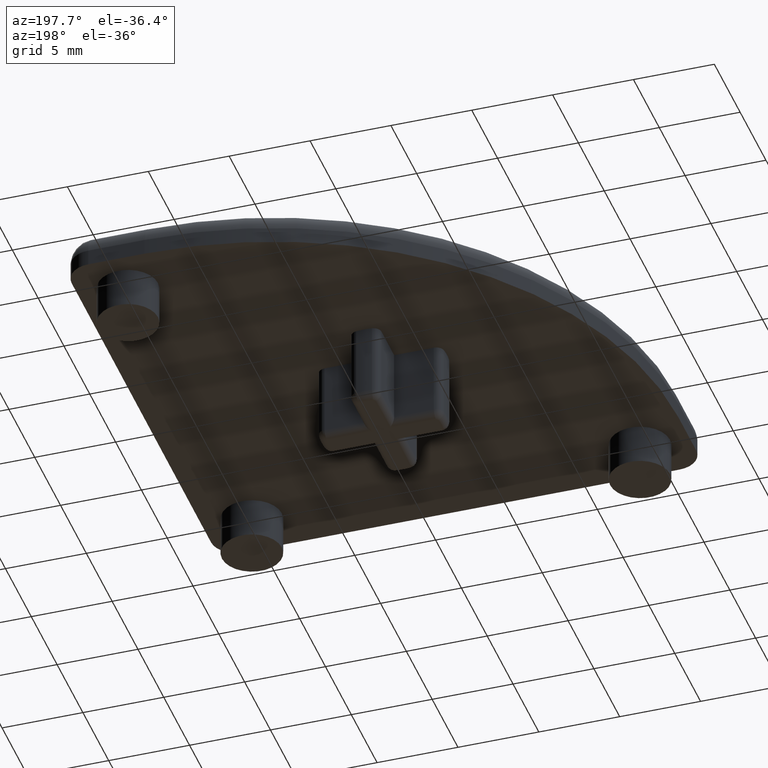
[diagram: clean part render]
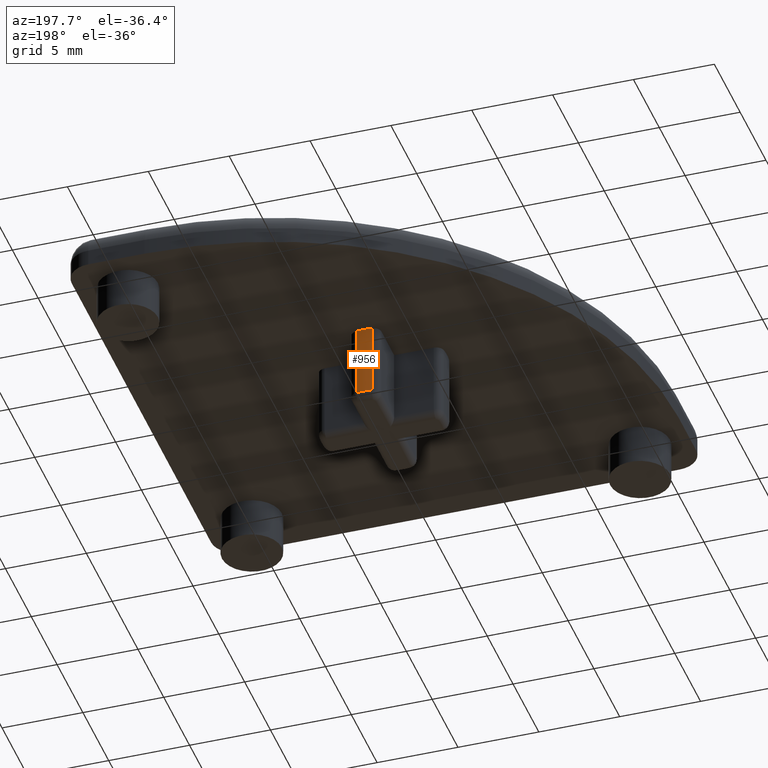
[diagram: same view with one face highlighted and labeled with its STEP entity id]
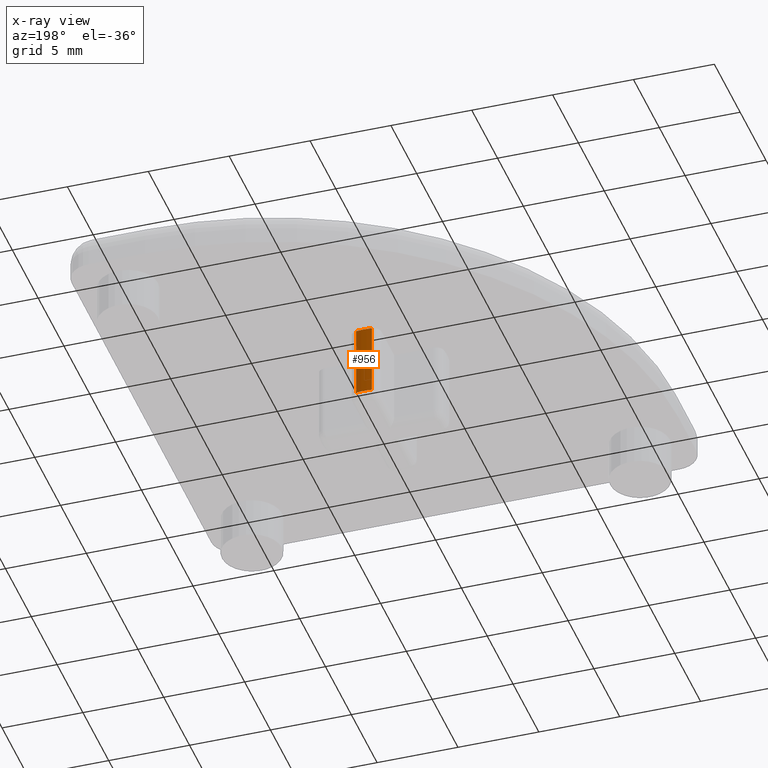
[diagram: x-ray of the same camera — body ghosted, the highlighted face saturated]
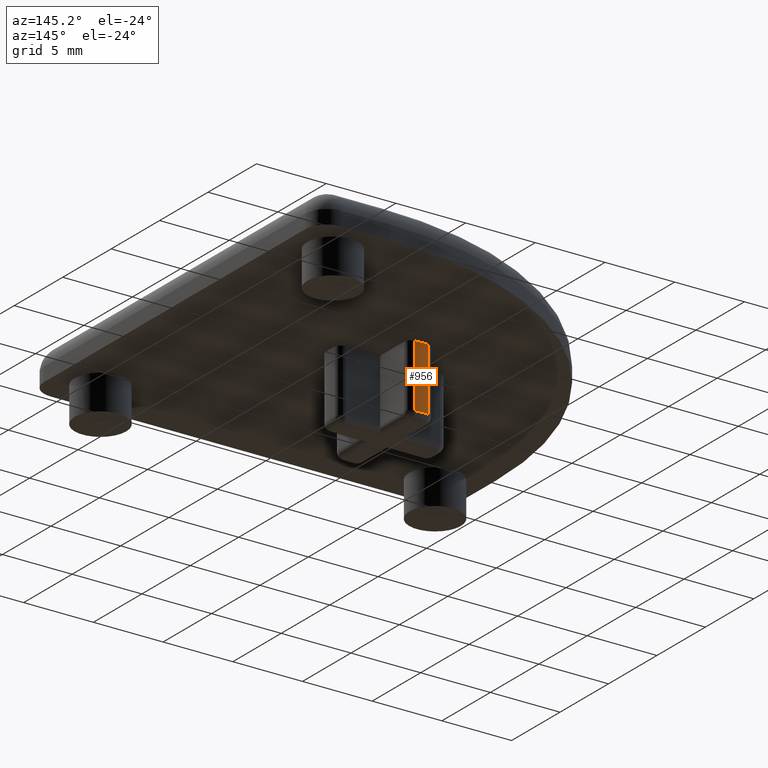
[diagram: same view with one face highlighted and labeled with its STEP entity id]
A machine part, auxiliary view. The second image highlights one B-rep face of the part: STEP entity #956.
The next image is the same camera in x-ray: the body ghosted, the highlighted face saturated — about 0% of this face is hidden behind the body in this view.
A second angle (auxiliary view) of the same face is appended — the face is thin or edge-on in the first view.
In plain terms, the highlighted cylindrical surface (partial cylindrical patch) has radius 3.9 mm, axis along (0, 0, -1).
Its self-contained STEP definition (entity closure, byte-faithful):
#46=LINE('',#1490,#113);
#51=LINE('',#1510,#118);
#113=VECTOR('',#1151,10.);
#118=VECTOR('',#1172,10.);
#199=CYLINDRICAL_SURFACE('',#1088,3.9);
#251=FACE_OUTER_BOUND('',#316,.T.);
#316=EDGE_LOOP('',(#789,#790,#791,#792));
#384=CIRCLE('',#1072,3.9);
#388=CIRCLE('',#1089,3.9);
#414=VERTEX_POINT('',#1483);
#416=VERTEX_POINT('',#1488);
#419=VERTEX_POINT('',#1499);
#422=VERTEX_POINT('',#1506);
#495=EDGE_CURVE('',#416,#414,#46,.T.);
#505=EDGE_CURVE('',#419,#422,#51,.T.);
#566=EDGE_CURVE('',#414,#419,#384,.T.);
#582=EDGE_CURVE('',#422,#416,#388,.T.);
#789=ORIENTED_EDGE('',*,*,#495,.F.);
#790=ORIENTED_EDGE('',*,*,#582,.F.);
#791=ORIENTED_EDGE('',*,*,#505,.F.);
#792=ORIENTED_EDGE('',*,*,#566,.F.);
#956=ADVANCED_FACE('',(#251),#199,.T.);
#1072=AXIS2_PLACEMENT_3D('',#1630,#1313,#1314);
#1088=AXIS2_PLACEMENT_3D('',#1662,#1357,#1358);
#1089=AXIS2_PLACEMENT_3D('',#1663,#1359,#1360);
#1151=DIRECTION('',(0.,0.,-1.));
#1172=DIRECTION('',(0.,0.,1.));
#1313=DIRECTION('center_axis',(0.,0.,-1.));
#1314=DIRECTION('ref_axis',(3.20256641718795E-16,1.,0.));
#1357=DIRECTION('center_axis',(0.,0.,-1.));
#1358=DIRECTION('ref_axis',(0.237179487179731,-0.971465846471794,0.));
#1359=DIRECTION('center_axis',(0.,0.,1.));
#1360=DIRECTION('ref_axis',(0.237179487179731,-0.971465846471794,0.));
#1483=CARTESIAN_POINT('',(-0.487499999999999,3.8694112924361,-4.5));
#1488=CARTESIAN_POINT('',(-0.487499999999999,3.8694112924361,0.));
#1490=CARTESIAN_POINT('',(-0.487499999999999,3.8694112924361,0.));
#1499=CARTESIAN_POINT('',(0.487500000000001,3.8694112924361,-4.5));
#1506=CARTESIAN_POINT('',(0.487500000000001,3.8694112924361,0.));
#1510=CARTESIAN_POINT('',(0.487500000000001,3.8694112924361,0.));
#1630=CARTESIAN_POINT('Origin',(-1.2490009027033E-15,4.13169498614252E-12,
-4.5));
#1662=CARTESIAN_POINT('Origin',(-1.2490009027033E-15,4.13169498614252E-12,
0.));
#1663=CARTESIAN_POINT('Origin',(-1.2490009027033E-15,4.13169498614252E-12,
0.));